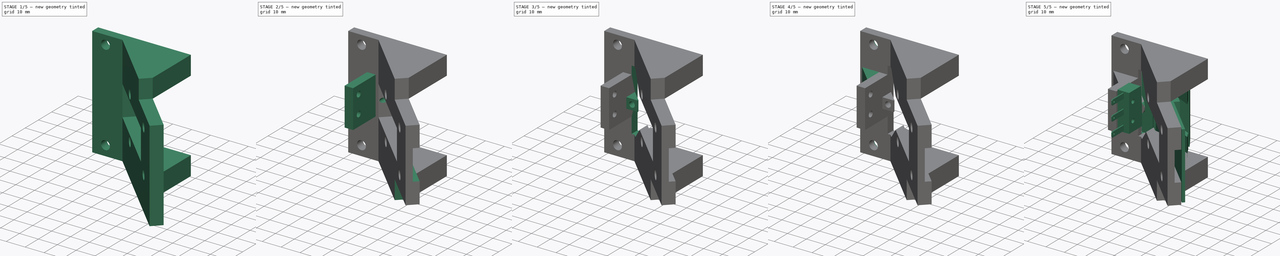
[diagram: build sequence overview — one tinted view per stage of 5, left to right]
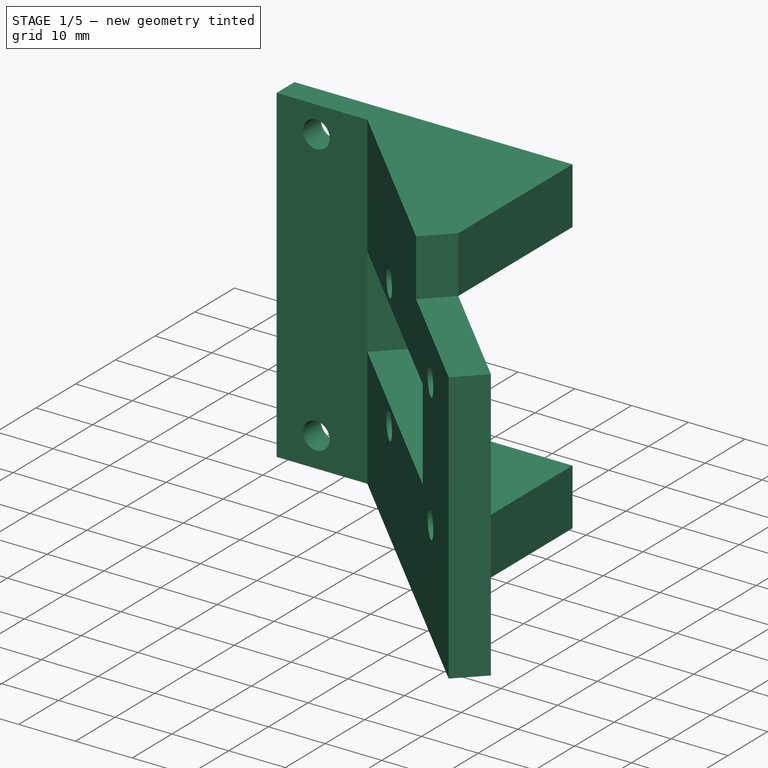
[diagram: stage 1 of 5 — iso view after this stage's code; geometry added in this stage tinted green]
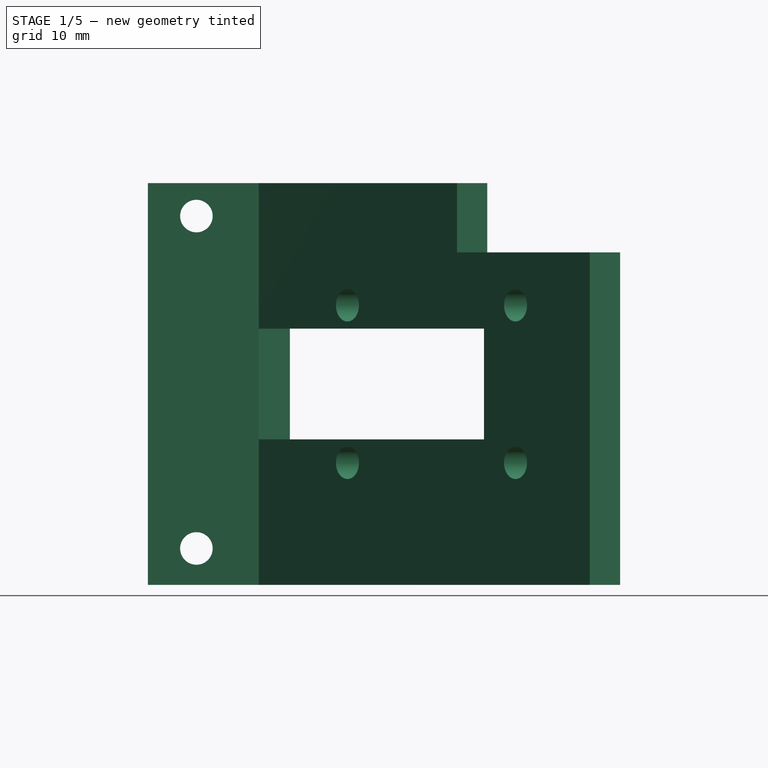
[diagram: stage 1 of 5 — front view after this stage's code; geometry added in this stage tinted green]
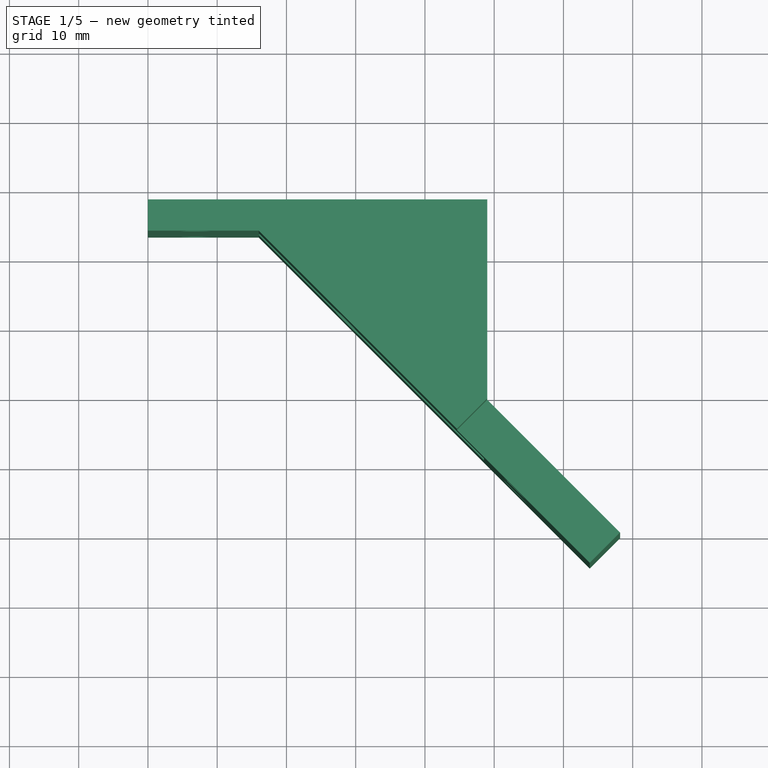
[diagram: stage 1 of 5 — top view after this stage's code; geometry added in this stage tinted green]
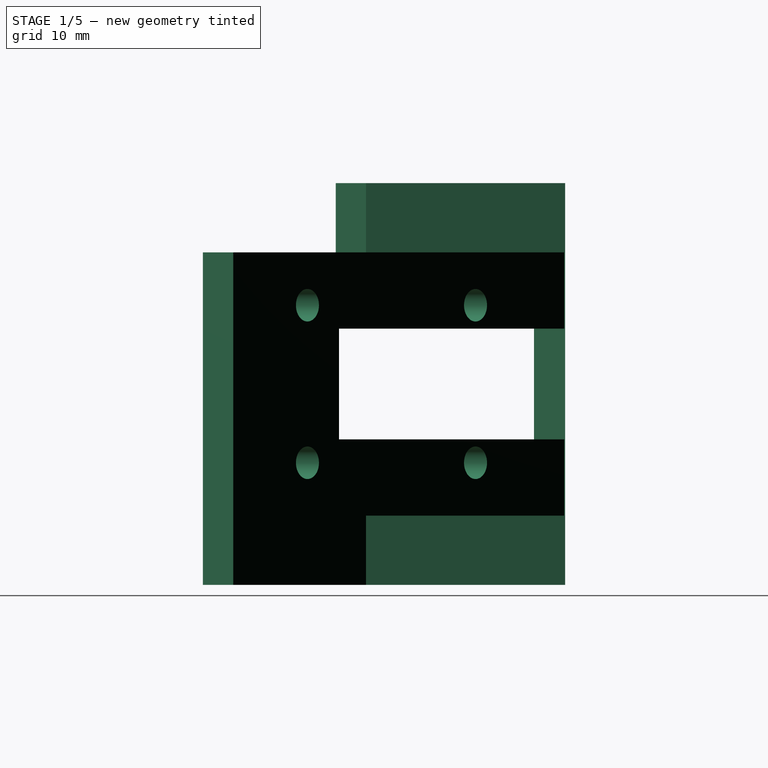
[diagram: stage 1 of 5 — right view after this stage's code; geometry added in this stage tinted green]
FCSTD DOCUMENT  (FreeCAD 0.18R4 (GitTag))
Label: USB_mount_v0.1
License: CreativeCommons Attribution-ShareAlike
LicenseURL: http://creativecommons.org/licenses/by-sa/4.0/
objects: Sketcher::SketchObject×18, PartDesign::Pocket×17, Part::FeaturePython×3, PartDesign::Pad×3, PartDesign::Chamfer×3, App::FeaturePython×2, PartDesign::Fillet×2, Part::Feature×1, PartDesign::Body×1
note: 68 computed .brp shape members not serialized (recipe doc carries the construction recipe); baked Part::Feature solids carry a one-line shape summary decoded from their .brp

FEATURE [Sketcher::SketchObject] Sketch
  MapMode = 5
  Support = -> [XY_Plane]
  sketch-geometry (7):
    g0: LineSegment StartX=-150 StartY=478 StartZ=0 EndX=-101 EndY=478 EndZ=0
    g1: LineSegment StartX=-81.8197 StartY=430.07 StartZ=0 EndX=-86.1947 EndY=425.695 EndZ=0
    g2: LineSegment StartX=-101 StartY=478 StartZ=0 EndX=-101 EndY=449.25 EndZ=0
    g3: LineSegment StartX=-101 StartY=449.25 StartZ=0 EndX=-81.8197 EndY=430.07 EndZ=0
    g4: LineSegment StartX=-86.1947 StartY=425.695 StartZ=0 EndX=-134 EndY=473.5 EndZ=0
    g5: LineSegment StartX=-134 StartY=473.5 StartZ=0 EndX=-150 EndY=473.5 EndZ=0
    g6: LineSegment StartX=-150 StartY=473.5 StartZ=0 EndX=-150 EndY=478 EndZ=0
  constraints (21):
    c: Horizontal(g0)
    c: Coincident(g0,g2)
    c: Vertical(g2)
    c: Coincident(g2,g3)
    c: Coincident(g3,g1)
    c: Coincident(g1,g4)
    c: Coincident(g4,g5)
    c: Horizontal(g5)
    c: Coincident(g5,g6)
    c: Coincident(g6,g0)
    c: Vertical(g6)
    c: DistanceY(g6,g6) = 4.5
    c: DistanceX(g0) = -150
    c: DistanceY(g0) = 478
    c: Angle(g4) = 2.35619
    c: DistanceX(g5,g5) = 16
    c: DistanceX(g0,g0) = 49
    c: Perpendicular(g3,g1)
    c: Parallel(g3,g4)
    c: DistanceY(g2,g2) = 28.75
    c: Distance(g3) = 27.125
FEATURE [PartDesign::Pad] Pad
  Length = 58
  Length2 = 100
  Profile = -> Sketch
  Type = 0
FEATURE [Sketcher::SketchObject] Sketch001
  MapMode = 5
  Placement = pos=(0,478,0) rot=(0,0.707107,0.707107;3.14159rad)
  Support = -> [Pad]
  sketch-geometry (8):
    g0: LineSegment [constr] StartX=107 StartY=53.25 StartZ=0 EndX=143 EndY=53.25 EndZ=0
    g1: LineSegment [constr] StartX=143 StartY=53.25 StartZ=0 EndX=143 EndY=5.25 EndZ=0
    g2: LineSegment [constr] StartX=143 StartY=5.25 StartZ=0 EndX=107 EndY=5.25 EndZ=0
    g3: LineSegment [constr] StartX=107 StartY=5.25 StartZ=0 EndX=107 EndY=53.25 EndZ=0
    g4: Circle CenterX=143 CenterY=53.25 CenterZ=0 NormalX=0 NormalY=0 NormalZ=1 AngleXU=0 Radius=2.35
    g5: Circle CenterX=143 CenterY=5.25 CenterZ=0 NormalX=0 NormalY=0 NormalZ=1 AngleXU=0 Radius=2.35
    g6: Circle CenterX=107 CenterY=5.25 CenterZ=0 NormalX=0 NormalY=0 NormalZ=1 AngleXU=0 Radius=2.35
    g7: Circle CenterX=107 CenterY=53.25 CenterZ=0 NormalX=0 NormalY=0 NormalZ=1 AngleXU=0 Radius=2.35
  constraints (20):
    c: Coincident(g0,g1)
    c: Coincident(g1,g2)
    c: Coincident(g2,g3)
    c: Coincident(g3,g0)
    c: Horizontal(g0)
    c: Horizontal(g2)
    c: Vertical(g1)
    c: Vertical(g3)
    c: Coincident(g4,g0)
    c: Coincident(g5,g1)
    c: Coincident(g6,g2)
    c: Coincident(g7,g0)
    c: DistanceX(g0) = 107
    c: DistanceY(g0) = 53.25
    c: DistanceX(g0,g0) = 36
    c: DistanceY(g1,g1) = 48
    c: Radius(g5) = 2.35
    c: Equal(g5,g6)
    c: Equal(g5,g7)
    c: Equal(g5,g4)
FEATURE [PartDesign::Pocket] Pocket
  BaseFeature = -> Pad
  Length = 8
  Length2 = 100
  Profile = -> Sketch001
  Type = 0
FEATURE [Sketcher::SketchObject] Sketch002
  ExternalGeometry = -> [Pocket]
  MapMode = 5
  Placement = pos=(174.125,174.125,0) rot=(0.281085,0.678598,0.678598;2.59356rad)
  Support = -> [Pocket]
  sketch-geometry (4):
    g0: LineSegment StartX=361.961 StartY=48 StartZ=0 EndX=429.567 EndY=48 EndZ=0
    g1: LineSegment StartX=429.567 StartY=48 StartZ=0 EndX=429.567 EndY=10 EndZ=0
    g2: LineSegment StartX=429.567 StartY=10 StartZ=0 EndX=361.961 EndY=10 EndZ=0
    g3: LineSegment StartX=361.961 StartY=10 StartZ=0 EndX=361.961 EndY=48 EndZ=0
  constraints (12):
    c: Coincident(g0,g1)
    c: Coincident(g1,g2)
    c: Coincident(g2,g3)
    c: Coincident(g3,g0)
    c: Horizontal(g0)
    c: Horizontal(g2)
    c: Vertical(g1)
    c: Vertical(g3)
    c: PointOnObject(g0,g-3)
    c: PointOnObject(g1,g-4)
    c: DistanceY(g-4,g1) = 10
    c: DistanceY(g0,g-4) = 10
FEATURE [PartDesign::Pocket] Pocket001
  BaseFeature = -> Pocket
  Length = 5
  Length2 = 100
  Profile = -> Sketch002
  Reversed = true
  Type = 1
FEATURE [Sketcher::SketchObject] Sketch003
  MapMode = 5
  Placement = pos=(174.125,174.125,0) rot=(0.281085,0.678598,0.678598;2.59356rad)
  Support = -> [Pocket001]
  sketch-geometry (8):
    g0: LineSegment [constr] StartX=377.125 StartY=40.375 StartZ=0 EndX=411.45 EndY=40.375 EndZ=0
    g1: LineSegment [constr] StartX=411.45 StartY=40.375 StartZ=0 EndX=411.45 EndY=17.625 EndZ=0
    g2: LineSegment [constr] StartX=411.45 StartY=17.625 StartZ=0 EndX=377.125 EndY=17.625 EndZ=0
    g3: LineSegment [constr] StartX=377.125 StartY=17.625 StartZ=0 EndX=377.125 EndY=40.375 EndZ=0
    g4: Circle CenterX=377.125 CenterY=40.375 CenterZ=0 NormalX=0 NormalY=0 NormalZ=1 AngleXU=0 Radius=2.35
    g5: Circle CenterX=411.45 CenterY=40.375 CenterZ=0 NormalX=0 NormalY=0 NormalZ=1 AngleXU=0 Radius=2.35
    g6: Circle CenterX=411.45 CenterY=17.625 CenterZ=0 NormalX=0 NormalY=0 NormalZ=1 AngleXU=0 Radius=2.35
    g7: Circle CenterX=377.125 CenterY=17.625 CenterZ=0 NormalX=0 NormalY=0 NormalZ=1 AngleXU=0 Radius=2.35
  constraints (20):
    c: Coincident(g0,g1)
    c: Coincident(g1,g2)
    c: Coincident(g2,g3)
    c: Coincident(g3,g0)
    c: Horizontal(g0)
    c: Horizontal(g2)
    c: Vertical(g1)
    c: Vertical(g3)
    c: Coincident(g4,g0)
    c: Coincident(g5,g0)
    c: Coincident(g6,g1)
    c: Coincident(g7,g2)
    c: Radius(g7) = 2.35
    c: Equal(g7,g4)
    c: Equal(g7,g5)
    c: Equal(g7,g6)
    c: DistanceX(g1) = 411.45
    c: DistanceY(g1) = 17.625
    c: DistanceX(g2,g2) = 34.325
    c: DistanceY(g1,g1) = 22.75
FEATURE [PartDesign::Pocket] Pocket002
  BaseFeature = -> Pocket001
  Length = 7
  Length2 = 100
  Profile = -> Sketch003
  Type = 0
FEATURE [Sketcher::SketchObject] Sketch004
  ExternalGeometry = -> [Pocket002]
  MapMode = 5
  Placement = pos=(169.75,169.75,0) rot=(0.862856,-0.357407,-0.357407;1.71777rad)
  Support = -> [Pocket002]
  sketch-geometry (4):
    g0: LineSegment StartX=-429.567 StartY=37 StartZ=0 EndX=-383.567 EndY=37 EndZ=0
    g1: LineSegment StartX=-383.567 StartY=37 StartZ=0 EndX=-383.567 EndY=21 EndZ=0
    g2: LineSegment StartX=-383.567 StartY=21 StartZ=0 EndX=-429.567 EndY=21 EndZ=0
    g3: LineSegment StartX=-429.567 StartY=21 StartZ=0 EndX=-429.567 EndY=37 EndZ=0
  constraints (12):
    c: Coincident(g0,g1)
    c: Coincident(g1,g2)
    c: Coincident(g2,g3)
    c: Coincident(g3,g0)
    c: Horizontal(g0)
    c: Horizontal(g2)
    c: Vertical(g1)
    c: Vertical(g3)
    c: PointOnObject(g0,g-3)
    c: DistanceY(g0,g-4) = 21
    c: DistanceY(g-4,g1) = 21
    c: DistanceX(g2,g2) = 46
FEATURE [PartDesign::Pocket] Pocket003
  BaseFeature = -> Pocket002
  Length = 8
  Length2 = 100
  Profile = -> Sketch004
  Type = 0
FEATURE [PartDesign::Pocket] Pocket004
  BaseFeature = -> Pocket003
  Length = 5
  Length2 = 100
  Profile = -> Pocket003 [Face20]
  Type = 1
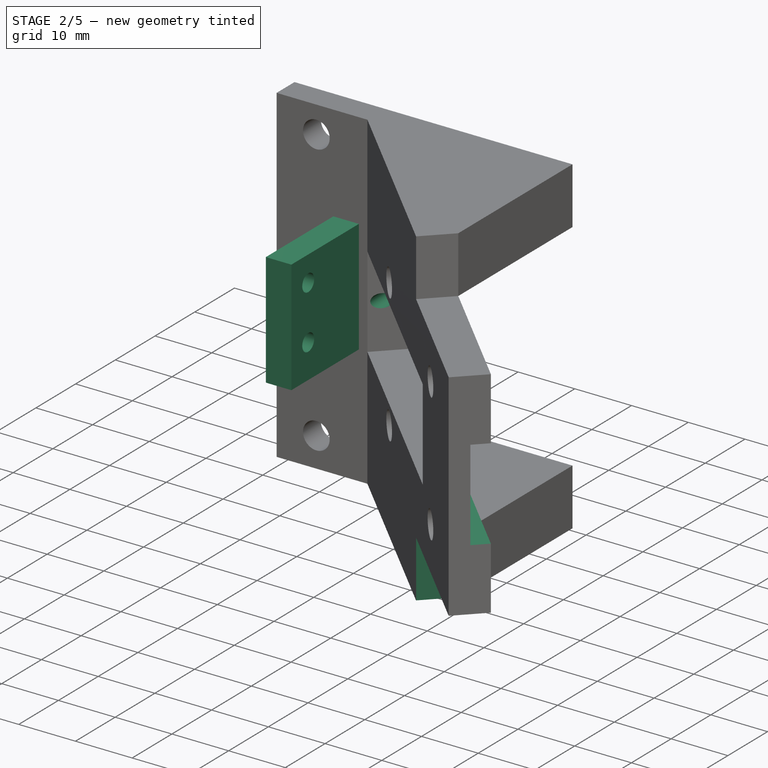
[diagram: stage 2 of 5 — iso view after this stage's code; geometry added in this stage tinted green]
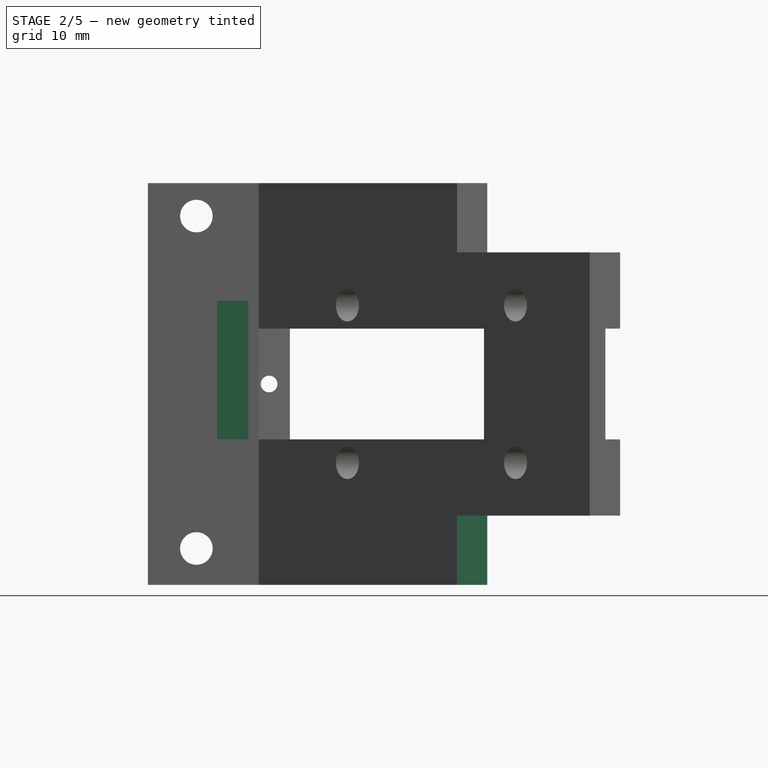
[diagram: stage 2 of 5 — front view after this stage's code; geometry added in this stage tinted green]
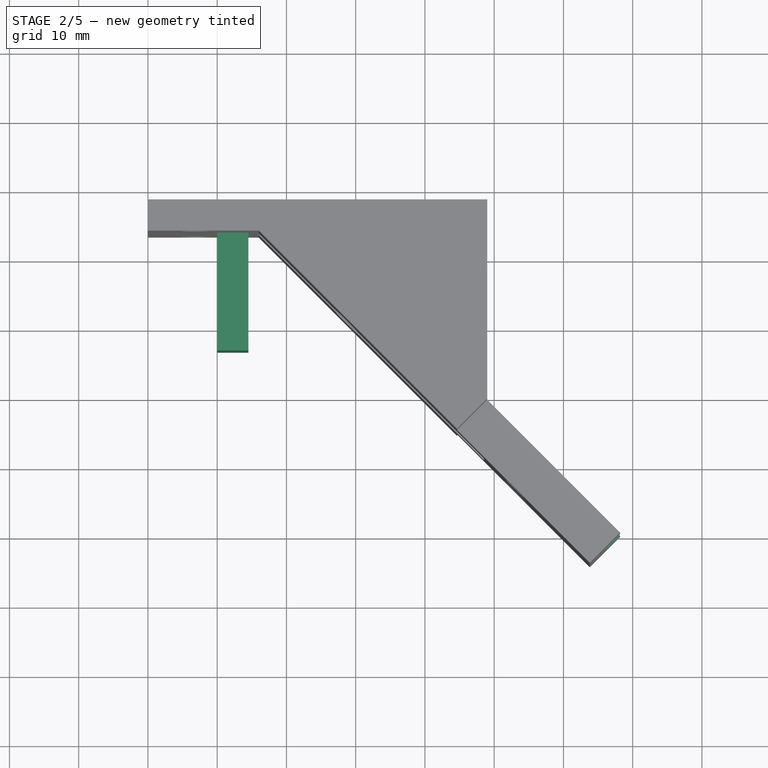
[diagram: stage 2 of 5 — top view after this stage's code; geometry added in this stage tinted green]
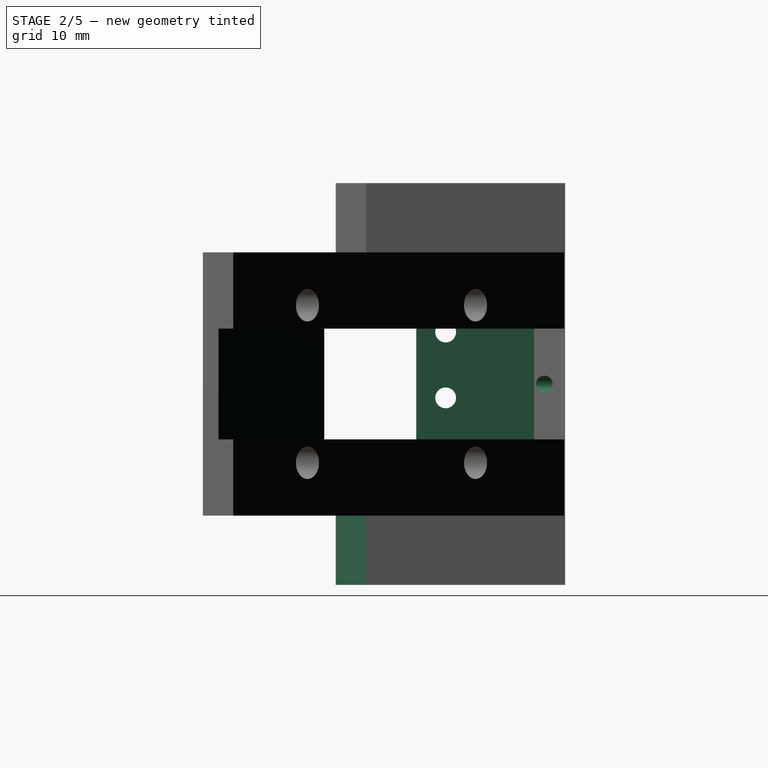
[diagram: stage 2 of 5 — right view after this stage's code; geometry added in this stage tinted green]
FEATURE [PartDesign::Pocket] Pocket005
  BaseFeature = -> Pocket004
  Length = 5
  Length2 = 100
  Profile = -> Pocket004 [Face16]
  Type = 1
FEATURE [Sketcher::SketchObject] Sketch005
  ExternalGeometry = -> [Pocket005]
  MapMode = 5
  Placement = pos=(174.125,174.125,0) rot=(0.281085,0.678598,0.678598;2.59356rad)
  Support = -> [Pocket005]
  sketch-geometry (4):
    g0: LineSegment StartX=383.567 StartY=37 StartZ=0 EndX=361.961 EndY=37 EndZ=0
    g1: LineSegment StartX=361.961 StartY=37 StartZ=0 EndX=361.961 EndY=21 EndZ=0
    g2: LineSegment StartX=361.961 StartY=21 StartZ=0 EndX=383.567 EndY=21 EndZ=0
    g3: LineSegment StartX=383.567 StartY=21 StartZ=0 EndX=383.567 EndY=37 EndZ=0
  constraints (11):
    c: Coincident(g0,g1)
    c: Coincident(g1,g2)
    c: Coincident(g2,g3)
    c: Coincident(g3,g0)
    c: Horizontal(g0)
    c: Horizontal(g2)
    c: Vertical(g1)
    c: Vertical(g3)
    c: Coincident(g2,g-3)
    c: Coincident(g0,g-3)
    c: PointOnObject(g0,g-4)
FEATURE [PartDesign::Pocket] Pocket006
  BaseFeature = -> Pocket005
  Length = 3
  Length2 = 100
  Profile = -> Sketch005
  Type = 0
FEATURE [Sketcher::SketchObject] Sketch006
  ExternalGeometry = -> [Pocket006]
  MapMode = 5
  Placement = pos=(0,478,0) rot=(0,0.707107,0.707107;3.14159rad)
  Support = -> [Pocket006]
  sketch-geometry (1):
    g0: Circle CenterX=132.5 CenterY=29 CenterZ=0 NormalX=0 NormalY=0 NormalZ=1 AngleXU=0 Radius=1.2
  constraints (3):
    c: Radius(g0) = 1.2
    c: DistanceX(g0,g-3) = 17.5
    c: DistanceY(g0) = 29
FEATURE [PartDesign::Pocket] Pocket007
  BaseFeature = -> Pocket006
  Length = 5
  Length2 = 100
  Profile = -> Sketch006
  Type = 0
FEATURE [PartDesign::Pad] Pad001
  BaseFeature = -> Pocket007
  Length = 17
  Length2 = 100
  Profile = -> Sketch007
  Type = 0
FEATURE [Sketcher::SketchObject] Sketch008
  MapMode = 5
  Placement = pos=(-140,0,0) rot=(0.57735,-0.57735,-0.57735;2.0944rad)
  Support = -> [Pad001]
  sketch-geometry (2):
    g0: Circle CenterX=-460.75 CenterY=36.5 CenterZ=0 NormalX=0 NormalY=0 NormalZ=1 AngleXU=0 Radius=1.5
    g1: Circle CenterX=-460.75 CenterY=27 CenterZ=0 NormalX=0 NormalY=0 NormalZ=1 AngleXU=0 Radius=1.5
  constraints (6):
    c: DistanceX(g1,g0) = 0
    c: DistanceY(g1,g0) = 9.5
    c: DistanceX(g1) = -460.75
    c: DistanceY(g1) = 27
    c: Radius(g1) = 1.5
    c: Equal(g1,g0)
FEATURE [PartDesign::Pocket] Pocket008
  BaseFeature = -> Pad001
  Length = 5
  Length2 = 100
  Profile = -> Sketch008
  Type = 0
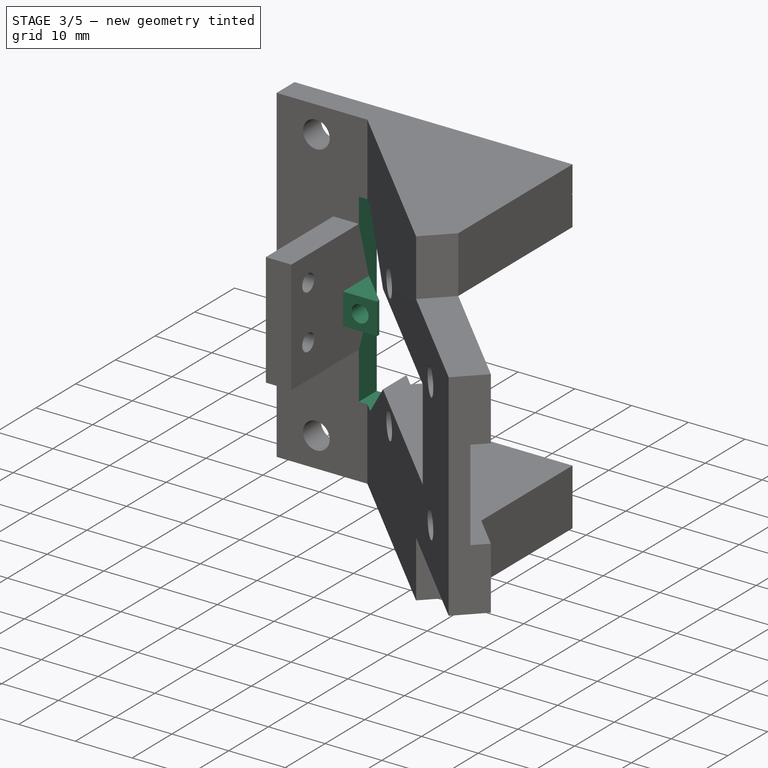
[diagram: stage 3 of 5 — iso view after this stage's code; geometry added in this stage tinted green]
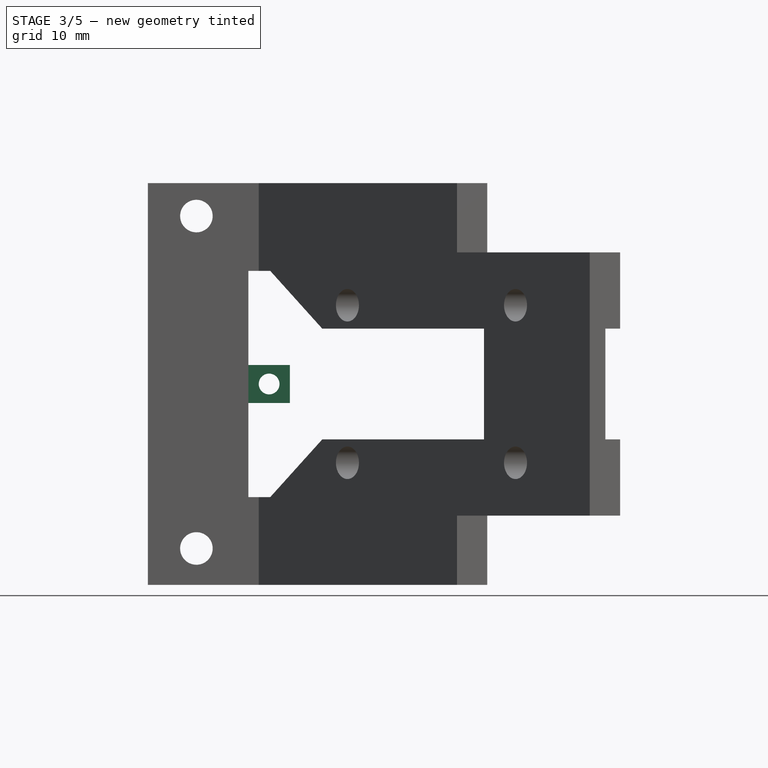
[diagram: stage 3 of 5 — front view after this stage's code; geometry added in this stage tinted green]
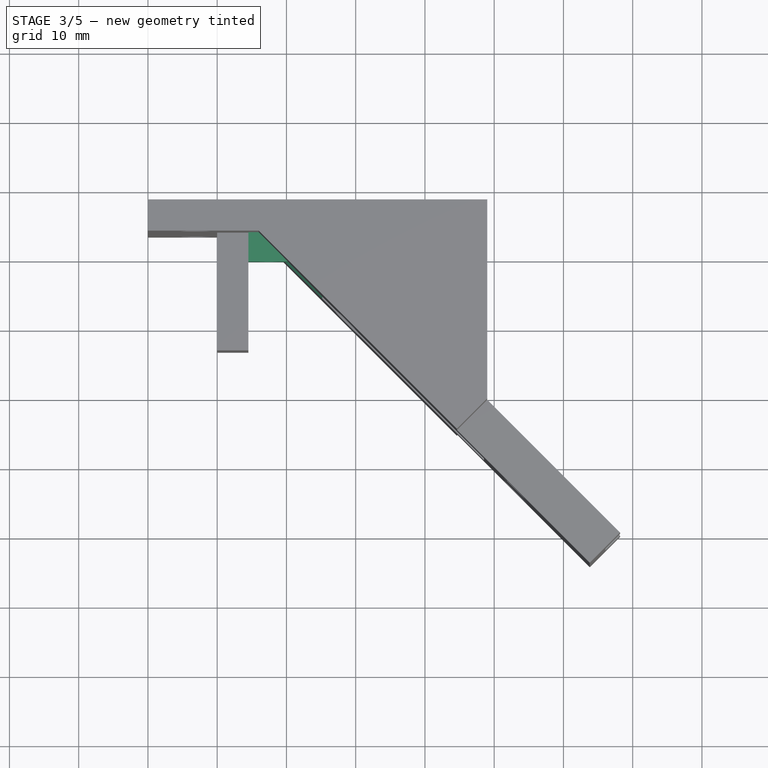
[diagram: stage 3 of 5 — top view after this stage's code; geometry added in this stage tinted green]
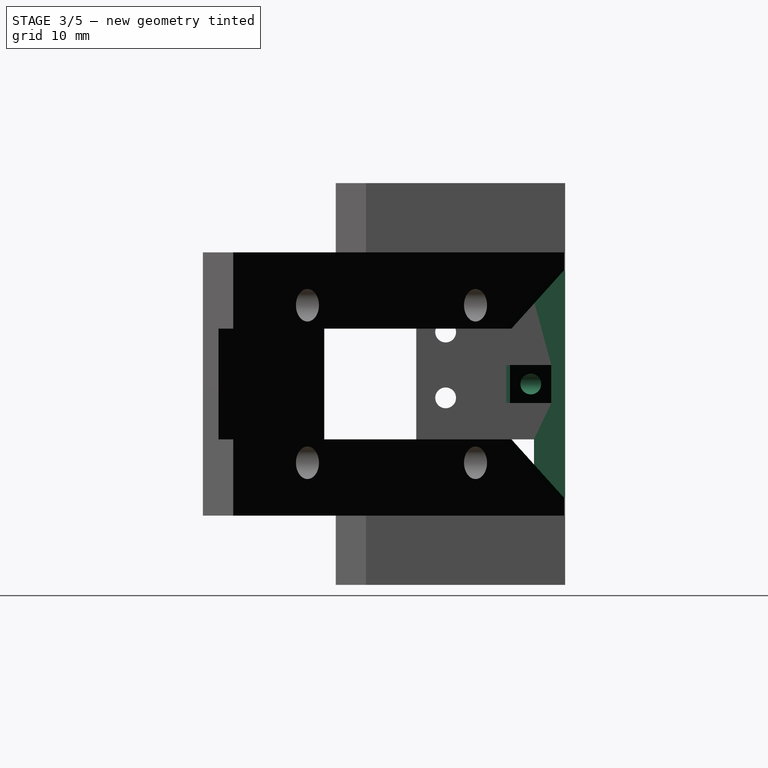
[diagram: stage 3 of 5 — right view after this stage's code; geometry added in this stage tinted green]
FEATURE [Sketcher::SketchObject] Sketch011
  MapMode = 5
  Placement = pos=(174.125,174.125,0) rot=(0.281085,0.678598,0.678598;2.59356rad)
  sketch-geometry (4):
    g0: LineSegment StartX=431.567 StartY=48 StartZ=0 EndX=417.567 EndY=37 EndZ=0
    g1: LineSegment StartX=431.567 StartY=10 StartZ=0 EndX=431.567 EndY=48 EndZ=0
    g2: LineSegment StartX=417.567 StartY=21 StartZ=0 EndX=431.567 EndY=10 EndZ=0
    g3: LineSegment StartX=417.567 StartY=37 StartZ=0 EndX=417.567 EndY=21 EndZ=0
  constraints (12):
    c: Vertical(g1)
    c: DistanceX(g0,g1) = 14
    c: Coincident(g0,g1)
    c: Coincident(g1,g2)
    c: Coincident(g2,g3)
    c: Coincident(g0,g3)
    c: Vertical(g3)
    c: DistanceY(g0,g0) = 11
    c: DistanceY(g2,g2) = 11
    c: DistanceX(g0) = 431.567
    c: DistanceY(g0) = 48
    c: DistanceY(g1,g1) = 38
FEATURE [Sketcher::SketchObject] Sketch013
  MapMode = 5
  Placement = pos=(-135.5,0,0) rot=(0.57735,0.57735,0.57735;2.0944rad)
  sketch-geometry (4):
    g0: LineSegment StartX=469.5 StartY=31.75 StartZ=0 EndX=476 EndY=31.75 EndZ=0
    g1: LineSegment StartX=476 StartY=31.75 StartZ=0 EndX=476 EndY=26.25 EndZ=0
    g2: LineSegment StartX=476 StartY=26.25 StartZ=0 EndX=469.5 EndY=26.25 EndZ=0
    g3: LineSegment StartX=469.5 StartY=26.25 StartZ=0 EndX=469.5 EndY=31.75 EndZ=0
  constraints (12):
    c: Coincident(g0,g1)
    c: Coincident(g1,g2)
    c: Coincident(g2,g3)
    c: Coincident(g3,g0)
    c: Horizontal(g0)
    c: Horizontal(g2)
    c: Vertical(g1)
    c: Vertical(g3)
    c: DistanceX(g0) = 476
    c: DistanceY(g0) = 31.75
    c: DistanceY(g1,g1) = 5.5
    c: DistanceX(g0,g0) = 6.5
FEATURE [Sketcher::SketchObject] Sketch014
  MapMode = 5
  Placement = pos=(0,476,0) rot=(0,0.707107,0.707107;3.14159rad)
  sketch-geometry (1):
    g0: Circle CenterX=132.5 CenterY=29 CenterZ=0 NormalX=0 NormalY=0 NormalZ=1 AngleXU=0 Radius=1.5
  constraints (3):
    c: DistanceX(g0) = 132.5
    c: DistanceY(g0) = 29
    c: Radius(g0) = 1.5
FEATURE [Sketcher::SketchObject] Sketch015
  MapMode = 5
  Placement = pos=(0,0,31.75) rot=(0,0,1;0rad)
  sketch-geometry (3):
    g0: LineSegment StartX=-135.453 StartY=476 StartZ=0 EndX=-129.453 EndY=470 EndZ=0
    g1: LineSegment StartX=-129.453 StartY=470 StartZ=0 EndX=-129.453 EndY=476 EndZ=0
    g2: LineSegment StartX=-129.453 StartY=476 StartZ=0 EndX=-135.453 EndY=476 EndZ=0
  constraints (9):
    c: Coincident(g0,g1)
    c: Vertical(g1)
    c: Coincident(g1,g2)
    c: Coincident(g2,g0)
    c: Angle(g0) = -0.785398
    c: DistanceX(g0) = -135.453
    c: DistanceY(g0) = 476
    c: DistanceX(g2,g2) = 6
    c: Horizontal(g2)
FEATURE [PartDesign::Pocket] Pocket009
  BaseFeature = -> Pocket008
  Length = 4
  Length2 = 100
  Midplane = true
  Profile = -> Sketch011
  Refine = true
  Type = 0
FEATURE [Sketcher::SketchObject] Sketch012
  ExternalGeometry = -> [Pocket009]
  MapMode = 5
  Placement = pos=(0,478,0) rot=(0,0.707107,0.707107;3.14159rad)
  sketch-geometry (6):
    g0: LineSegment StartX=124.83 StartY=37 StartZ=0 EndX=132.328 EndY=45.3278 EndZ=0
    g1: LineSegment StartX=132.328 StartY=45.3278 StartZ=0 EndX=135.5 EndY=45.3278 EndZ=0
    g2: LineSegment StartX=135.5 StartY=45.3278 StartZ=0 EndX=135.5 EndY=12.6722 EndZ=0
    g3: LineSegment StartX=135.5 StartY=12.6722 StartZ=0 EndX=132.328 EndY=12.6722 EndZ=0
    g4: LineSegment StartX=132.328 StartY=12.6722 StartZ=0 EndX=124.83 EndY=21 EndZ=0
    g5: LineSegment StartX=124.83 StartY=21 StartZ=0 EndX=124.83 EndY=37 EndZ=0
  constraints (18):
    c: Coincident(g0,g1)
    c: Horizontal(g1)
    c: Coincident(g1,g2)
    c: Vertical(g2)
    c: Coincident(g2,g3)
    c: Horizontal(g3)
    c: Coincident(g3,g4)
    c: Coincident(g4,g5)
    c: Coincident(g5,g0)
    c: PointOnObject(g0,g-5)
    c: PointOnObject(g0,g-3)
    c: PointOnObject(g4,g-4)
    c: PointOnObject(g3,g-6)
    c: Angle(g4) = 2.30383
    c: Angle(g0) = 0.837758
    c: PointOnObject(g-7,g2)
    c: Vertical(g5)
    c: DistanceX(g0) = 124.83
FEATURE [PartDesign::Pocket] Pocket010
  BaseFeature = -> Pocket009
  Length = 30
  Length2 = 100
  Profile = -> Sketch012
  Refine = true
  Type = 0
FEATURE [PartDesign::Pad] Pad002
  BaseFeature = -> Pocket010
  Length = 6
  Length2 = 100
  Profile = -> Sketch013
  Refine = true
  Type = 0
FEATURE [PartDesign::Pocket] Pocket011
  BaseFeature = -> Pad002
  Length = 5
  Length2 = 100
  Profile = -> Sketch014
  Refine = true
  Type = 1
FEATURE [PartDesign::Pocket] Pocket012
  BaseFeature = -> Pocket011
  Length = 6
  Length2 = 100
  Profile = -> Sketch015
  Refine = true
  Type = 0
FEATURE [PartDesign::Pocket] Pocket013
  BaseFeature = -> Pocket012
  Length = 0.25
  Length2 = 100
  Profile = -> Sketch009
  Refine = true
  Type = 0
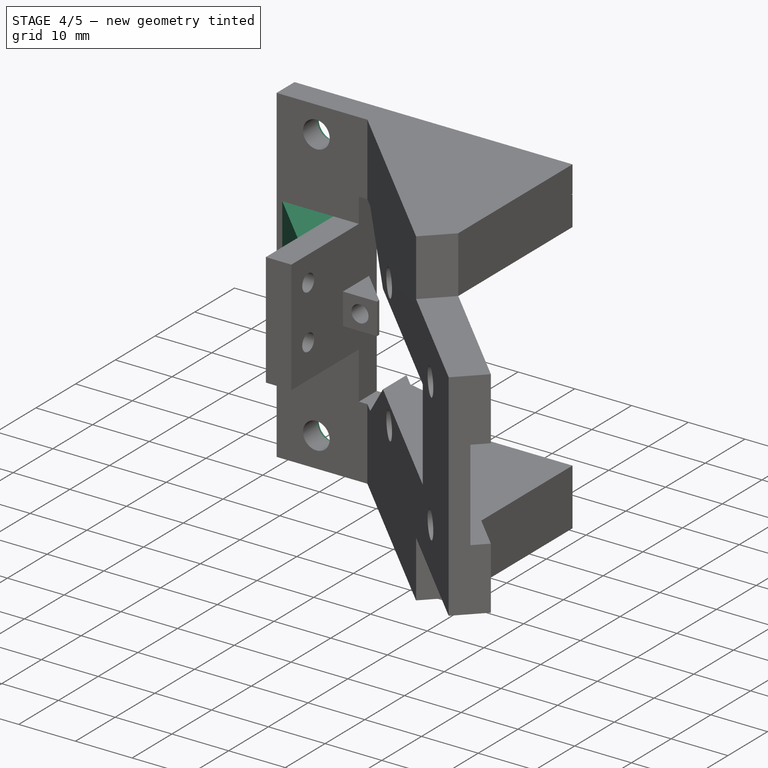
[diagram: stage 4 of 5 — iso view after this stage's code; geometry added in this stage tinted green]
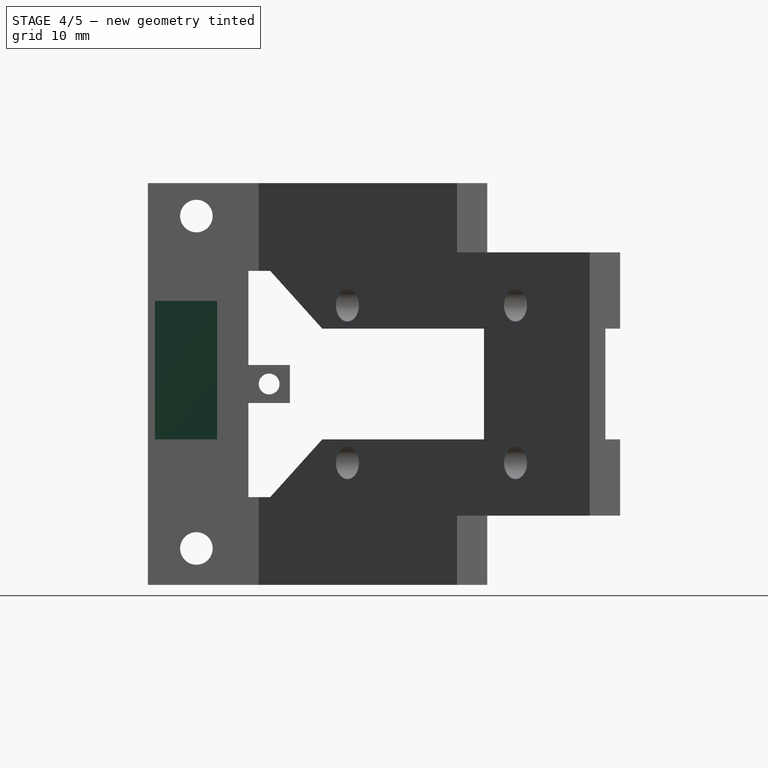
[diagram: stage 4 of 5 — front view after this stage's code; geometry added in this stage tinted green]
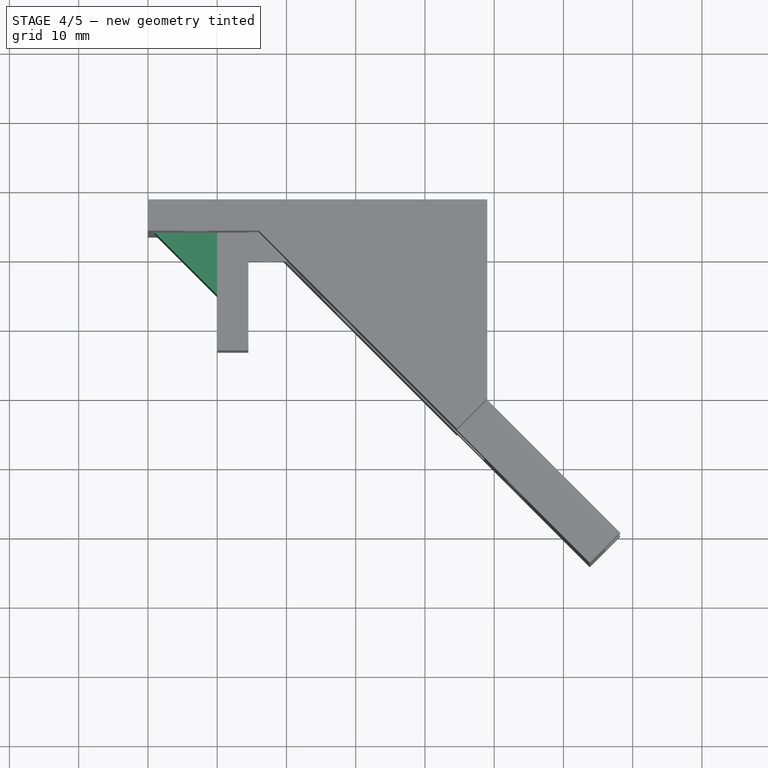
[diagram: stage 4 of 5 — top view after this stage's code; geometry added in this stage tinted green]
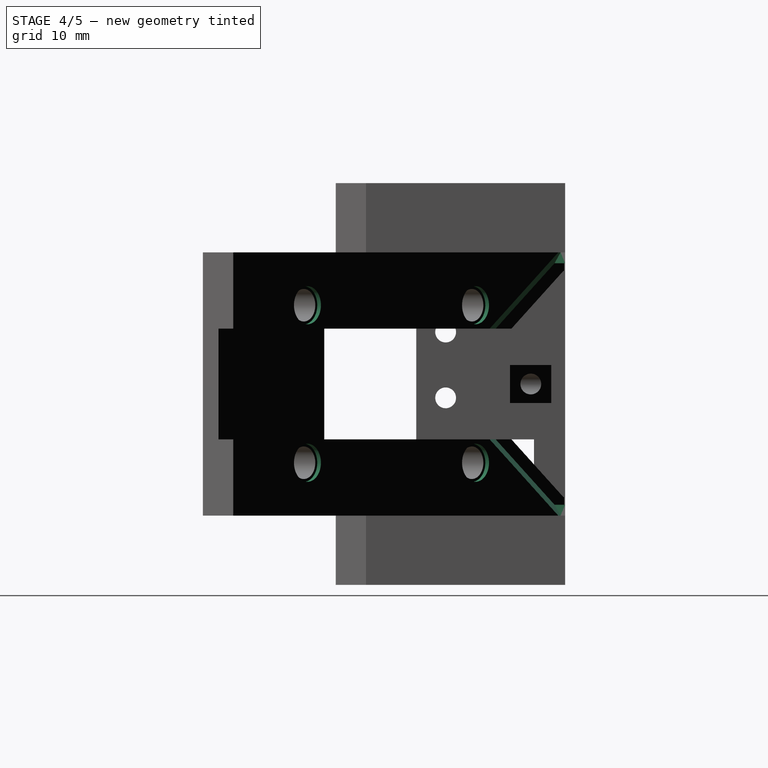
[diagram: stage 4 of 5 — right view after this stage's code; geometry added in this stage tinted green]
FEATURE [Sketcher::SketchObject] Sketch016
  ExternalGeometry = -> [Pocket013]
  MapMode = 5
  Placement = pos=(174.125,174.125,-4.71e-13) rot=(0.281085,0.678598,0.678598;2.59356rad)
  Support = -> [Pocket013]
  sketch-geometry (4):
    g0: Circle CenterX=377.125 CenterY=40.375 CenterZ=0 NormalX=0 NormalY=0 NormalZ=1 AngleXU=0 Radius=2.75
    g1: Circle CenterX=411.45 CenterY=40.375 CenterZ=0 NormalX=0 NormalY=0 NormalZ=1 AngleXU=0 Radius=2.75
    g2: Circle CenterX=411.45 CenterY=17.625 CenterZ=0 NormalX=0 NormalY=0 NormalZ=1 AngleXU=0 Radius=2.75
    g3: Circle CenterX=377.125 CenterY=17.625 CenterZ=0 NormalX=0 NormalY=0 NormalZ=1 AngleXU=0 Radius=2.75
  constraints (8):
    c: Coincident(g0,g-4)
    c: Coincident(g1,g-3)
    c: Coincident(g2,g-6)
    c: Coincident(g3,g-5)
    c: Equal(g3,g0)
    c: Equal(g0,g1)
    c: Equal(g1,g2)
    c: Radius(g2) = 2.75
FEATURE [PartDesign::Pocket] Pocket014
  BaseFeature = -> Pocket013
  Length = 0.75
  Length2 = 100
  Profile = -> Sketch016
  Refine = true
  Type = 0
FEATURE [Sketcher::SketchObject] Sketch017
  ExternalGeometry = -> [Pocket014]
  MapMode = 5
  Placement = pos=(-140,0,0) rot=(0.57735,-0.57735,-0.57735;2.0944rad)
  Support = -> [Pocket014]
  sketch-geometry (2):
    g0: Circle CenterX=-460.75 CenterY=36.5 CenterZ=0 NormalX=0 NormalY=0 NormalZ=1 AngleXU=0 Radius=1.75
    g1: Circle CenterX=-460.75 CenterY=27 CenterZ=0 NormalX=0 NormalY=0 NormalZ=1 AngleXU=0 Radius=1.75
  constraints (4):
    c: Coincident(g1,g-3)
    c: Coincident(g0,g-4)
    c: Radius(g1) = 1.75
    c: Equal(g1,g0)
FEATURE [PartDesign::Pocket] Pocket015
  BaseFeature = -> Pocket014
  Length = 0.5
  Length2 = 100
  Profile = -> Sketch017
  Refine = true
  Type = 0
FEATURE [Sketcher::SketchObject] Sketch018
  ExternalGeometry = -> [Pocket015]
  MapMode = 5
  Placement = pos=(0,478,0) rot=(0,0.707107,0.707107;3.14159rad)
  Support = -> [Pocket015]
  sketch-geometry (4):
    g0: Circle CenterX=107 CenterY=53.25 CenterZ=0 NormalX=0 NormalY=0 NormalZ=1 AngleXU=0 Radius=2.75
    g1: Circle CenterX=143 CenterY=53.25 CenterZ=0 NormalX=0 NormalY=0 NormalZ=1 AngleXU=0 Radius=2.75
    g2: Circle CenterX=143 CenterY=5.25 CenterZ=0 NormalX=0 NormalY=0 NormalZ=1 AngleXU=0 Radius=2.75
    g3: Circle CenterX=107 CenterY=5.25 CenterZ=0 NormalX=0 NormalY=0 NormalZ=1 AngleXU=0 Radius=2.75
  constraints (8):
    c: Coincident(g0,g-3)
    c: Coincident(g1,g-4)
    c: Coincident(g2,g-5)
    c: Coincident(g3,g-6)
    c: Radius(g3) = 2.75
    c: Equal(g3,g2)
    c: Equal(g3,g1)
    c: Equal(g3,g0)
FEATURE [PartDesign::Pocket] Pocket016
  BaseFeature = -> Pocket015
  Length = 0.75
  Length2 = 100
  Profile = -> Sketch018
  Refine = true
  Type = 0
FEATURE [PartDesign::Chamfer] Chamfer
  Base = -> Pocket016 [Edge135]
  BaseFeature = -> Pocket016
  Size = 9
FEATURE [PartDesign::Chamfer] Chamfer001
  Base = -> Chamfer [Edge211,Edge204]
  BaseFeature = -> Chamfer
  Size = 1.99
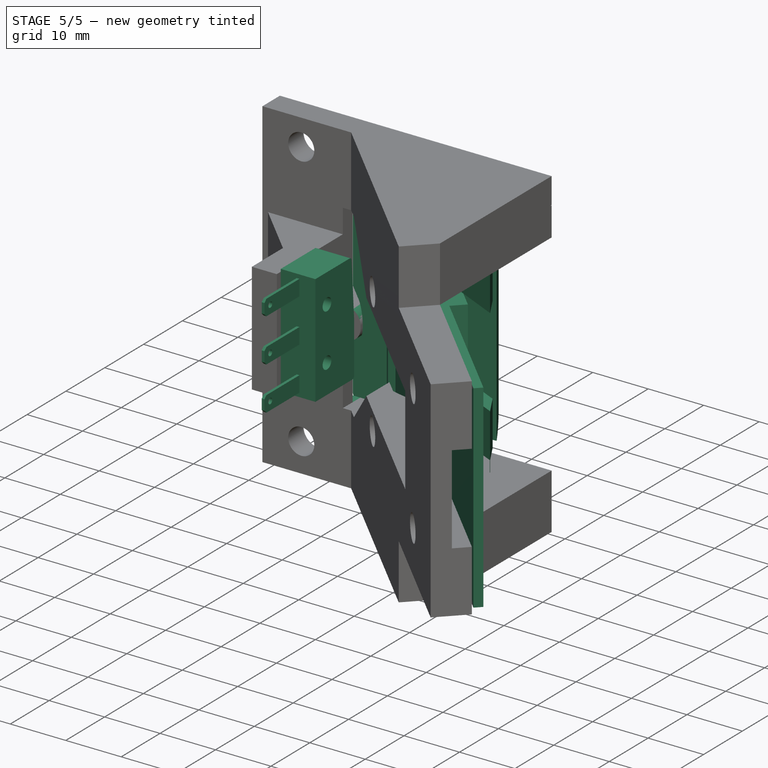
[diagram: stage 5 of 5 — iso view after this stage's code; geometry added in this stage tinted green]
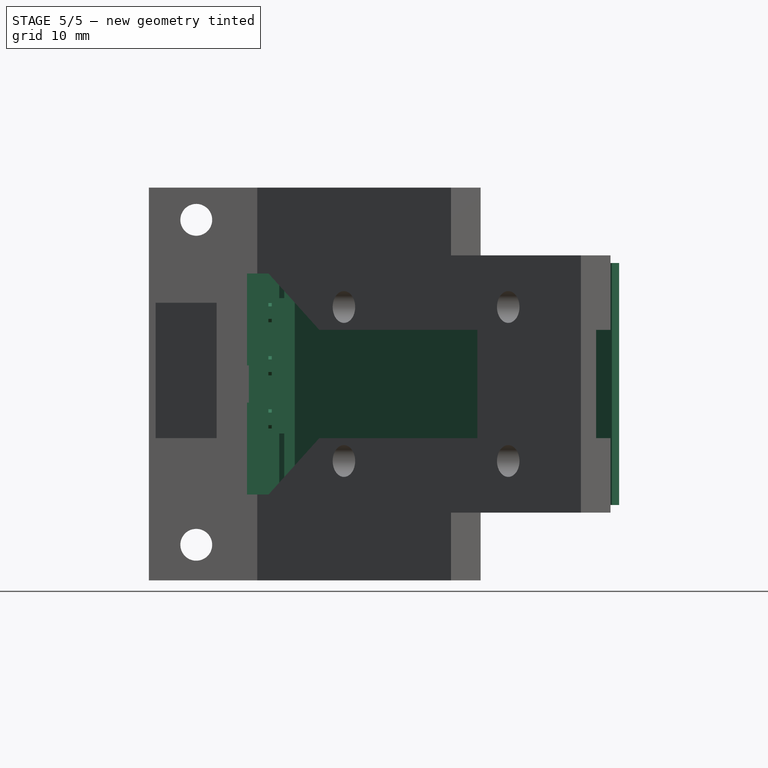
[diagram: stage 5 of 5 — front view after this stage's code; geometry added in this stage tinted green]
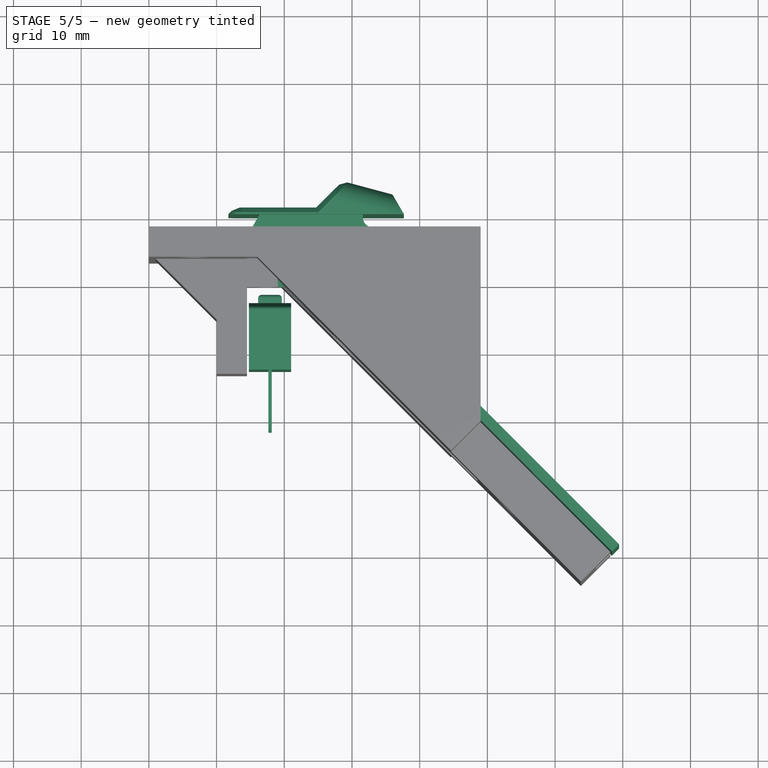
[diagram: stage 5 of 5 — top view after this stage's code; geometry added in this stage tinted green]
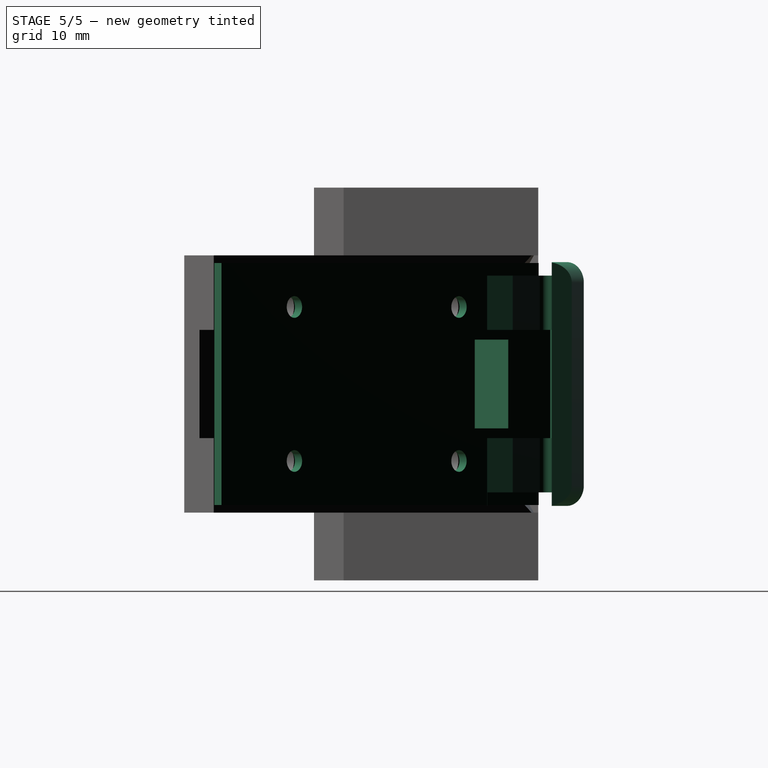
[diagram: stage 5 of 5 — right view after this stage's code; geometry added in this stage tinted green]
FEATURE [Part::Feature] Part__Feature  label="Fillet002"
  Placement = pos=(5.26797,16.3651,73.8929) rot=(0,0,1;0rad)
  shape: bbox 170 x 480 x 100.6 mm, 336 faces (baked)
FEATURE [Part::FeaturePython] USB_board_01  # a2plus imported part (geometry in sourceFile) (typed FeaturePython)
  Placement = pos=(-81.6001,430.152,46.875) rot=(-0.357407,0.862856,0.357407;1.71777rad)
  fixedPosition = true
  sourceFile = <userpath>/Projects/taz-quiver/Production_parts/Printed_parts/TAZ7_assembly/Quiver_assembly_parts/USB_board.fcstd
  timeLastImport = 1.52536e+09
  updateColors = true
FEATURE [Sketcher::SketchObject] Sketch007
  MapMode = 5
  Placement = pos=(0,473.5,0) rot=(1,0,0;1.5708rad)
  Support = -> [Pocket007]
  sketch-geometry (4):
    g0: LineSegment StartX=-135.5 StartY=41 StartZ=0 EndX=-140 EndY=41 EndZ=0
    g1: LineSegment StartX=-140 StartY=41 StartZ=0 EndX=-140 EndY=21 EndZ=0
    g2: LineSegment StartX=-140 StartY=21 StartZ=0 EndX=-135.5 EndY=21 EndZ=0
    g3: LineSegment StartX=-135.5 StartY=21 StartZ=0 EndX=-135.5 EndY=41 EndZ=0
  constraints (12):
    c: Coincident(g0,g1)
    c: Coincident(g1,g2)
    c: Coincident(g2,g3)
    c: Coincident(g3,g0)
    c: Horizontal(g0)
    c: Horizontal(g2)
    c: Vertical(g1)
    c: Vertical(g3)
    c: DistanceX(g1) = -140
    c: DistanceY(g1) = 21
    c: DistanceY(g1,g1) = 20
    c: DistanceX(g0,g0) = 4.5
FEATURE [Part::FeaturePython] limit_switch_01  # a2plus imported part (geometry in sourceFile) (typed FeaturePython)
  Placement = pos=(-128.982,457.115,21.6929) rot=(0,-1,0;1.5708rad)
  fixedPosition = false
  sourceFile = <userpath>/Projects/taz-quiver/Production_parts/Printed_parts/TAZ7_assembly/PARTS/limit_switch.fcstd
  timeLastImport = 1.52536e+09
  updateColors = true
FEATURE [Sketcher::SketchObject] Sketch009
  MapMode = 5
  Placement = pos=(0,478,0) rot=(0,0.707107,0.707107;3.14159rad)
  sketch-geometry (20):
    g0: LineSegment [constr] StartX=107 StartY=53.25 StartZ=0 EndX=101 EndY=53.25 EndZ=0
    g1: LineSegment [constr] StartX=143 StartY=53.25 StartZ=0 EndX=150 EndY=53.25 EndZ=0
    g2: LineSegment [constr] StartX=143 StartY=5.25 StartZ=0 EndX=150 EndY=5.25 EndZ=0
    g3: LineSegment [constr] StartX=107 StartY=5.25 StartZ=0 EndX=101 EndY=5.25 EndZ=0
    g4: LineSegment StartX=101 StartY=53.3 StartZ=0 EndX=103.65 EndY=53.3 EndZ=0
    g5: LineSegment StartX=103.65 StartY=53.3 StartZ=0 EndX=103.65 EndY=53.2 EndZ=0
    g6: LineSegment StartX=103.65 StartY=53.2 StartZ=0 EndX=101 EndY=53.2 EndZ=0
    g7: LineSegment StartX=101 StartY=53.2 StartZ=0 EndX=101 EndY=53.3 EndZ=0
    g8: LineSegment StartX=146.35 StartY=53.3 StartZ=0 EndX=150 EndY=53.3 EndZ=0
    g9: LineSegment StartX=150 StartY=53.3 StartZ=0 EndX=150 EndY=53.2 EndZ=0
    g10: LineSegment StartX=150 StartY=53.2 StartZ=0 EndX=146.35 EndY=53.2 EndZ=0
    g11: LineSegment StartX=146.35 StartY=53.2 StartZ=0 EndX=146.35 EndY=53.3 EndZ=0
    g12: LineSegment StartX=146.35 StartY=5.3 StartZ=0 EndX=150 EndY=5.3 EndZ=0
    g13: LineSegment StartX=150 StartY=5.3 StartZ=0 EndX=150 EndY=5.2 EndZ=0
    g14: LineSegment StartX=150 StartY=5.2 StartZ=0 EndX=146.35 EndY=5.2 EndZ=0
    g15: LineSegment StartX=146.35 StartY=5.2 StartZ=0 EndX=146.35 EndY=5.3 EndZ=0
    g16: LineSegment StartX=101 StartY=5.3 StartZ=0 EndX=103.65 EndY=5.3 EndZ=0
    g17: LineSegment StartX=103.65 StartY=5.3 StartZ=0 EndX=103.65 EndY=5.2 EndZ=0
    g18: LineSegment StartX=103.65 StartY=5.2 StartZ=0 EndX=101 EndY=5.2 EndZ=0
    g19: LineSegment StartX=101 StartY=5.2 StartZ=0 EndX=101 EndY=5.3 EndZ=0
  constraints (40):
    c: Horizontal(g0)
    c: Horizontal(g1)
    c: Horizontal(g3)
    c: Coincident(g4,g5)
    c: Coincident(g5,g6)
    c: Coincident(g6,g7)
    c: Coincident(g7,g4)
    c: Horizontal(g4)
    c: Horizontal(g6)
    c: Vertical(g5)
    c: Symmetric(g4,g6,g0)
    c: Distance(g5) = 0.1
    c: Horizontal(g2)
    c: Coincident(g8,g9)
    c: Coincident(g9,g10)
    c: Coincident(g10,g11)
    c: Coincident(g11,g8)
    c: Horizontal(g8)
    c: Horizontal(g10)
    c: Vertical(g11)
    c: Symmetric(g9,g8,g1)
    c: Distance(g11) = 0.1
    c: Coincident(g12,g13)
    c: Coincident(g13,g14)
    c: Coincident(g14,g15)
    c: Coincident(g15,g12)
    c: Horizontal(g12)
    c: Horizontal(g14)
    c: Vertical(g13)
    c: Symmetric(g12,g14,g2)
    c: Distance(g13) = 0.1
    c: Coincident(g16,g17)
    c: Coincident(g17,g18)
    c: Coincident(g18,g19)
    c: Coincident(g19,g16)
    c: Horizontal(g16)
    c: Horizontal(g18)
    c: Vertical(g17)
    c: Symmetric(g16,g18,g3)
    c: Distance(g17) = 0.1
FEATURE [App::FeaturePython] planeConstraint01_mirror  label="planeConstraint01__Pocket009"  # a2plus constraint (typed FeaturePython)
  Object1 = Pocket009
  Object2 = USB_bezel_v1_02
  SubElement1 = Face21
  SubElement2 = Face43
  Type = plane
  directionConstraint = 1
  offset = -2
FEATURE [App::FeaturePython] planeConstraint01  label="planeConstraint01__USB_bezel_v1_02"  # a2plus constraint (typed FeaturePython)
  Object1 = Pocket009
  Object2 = USB_bezel_v1_02
  SubElement1 = Face21
  SubElement2 = Face43
  Type = plane
  directionConstraint = 1
  offset = -2
FEATURE [Part::FeaturePython] USB_bezel_v1_02  # a2plus imported part (geometry in sourceFile) (typed FeaturePython)
  Placement = pos=(-111.75,478.999,11) rot=(0,0,1;2.0944rad)
  fixedPosition = false
  sourceFile = <userpath>/Projects/taz-quiver/Production_parts/Printed_parts/USB/USB_bezel_v1.fcstd
  timeLastImport = 1.54153e+09
  updateColors = true
FEATURE [PartDesign::Chamfer] Chamfer002
  Base = -> Chamfer001 [Edge76]
  BaseFeature = -> Chamfer001
  Size = 1.99
FEATURE [PartDesign::Fillet] Fillet
  Base = -> Chamfer002 [Edge247]
  BaseFeature = -> Chamfer002
  Radius = 0.5
FEATURE [PartDesign::Fillet] Fillet001
  Base = -> Fillet [Edge29,Edge15]
  BaseFeature = -> Fillet
  Radius = 2.49
FEATURE [PartDesign::Body] Body
  Group = -> [Sketch,Pad,Sketch001,Pocket,Sketch002,Pocket001,Sketch003,Pocket002,Sketch004,Pocket003,Pocket004,Pocket005,Sketch005,Pocket006,Sketch006,Pocket007,Sketch007,Pad001,Sketch008,Pocket008,Sketch009,Sketch011,Sketch012,Sketch013,Sketch014,Sketch015,Pocket009,Pocket010,Pad002,Pocket011,Pocket012,Pocket013,Sketch016,Pocket014,Sketch017,Pocket015,Sketch018,Pocket016,Chamfer,Chamfer001,Chamfer002,Fillet,+1 more]
  Origin = -> Origin
  Tip = -> Fillet001
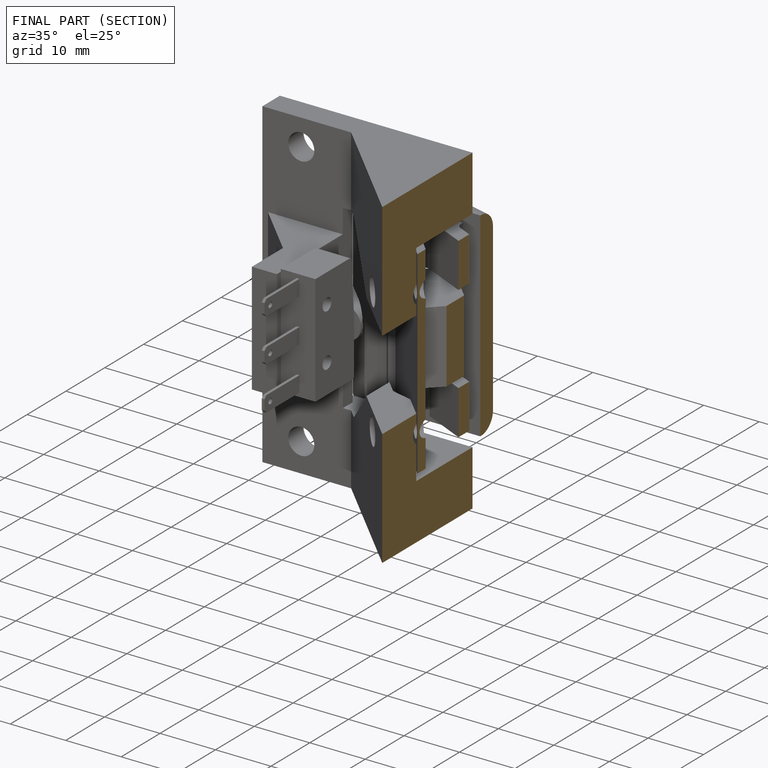
[diagram: finished part — half-section view (interior)]
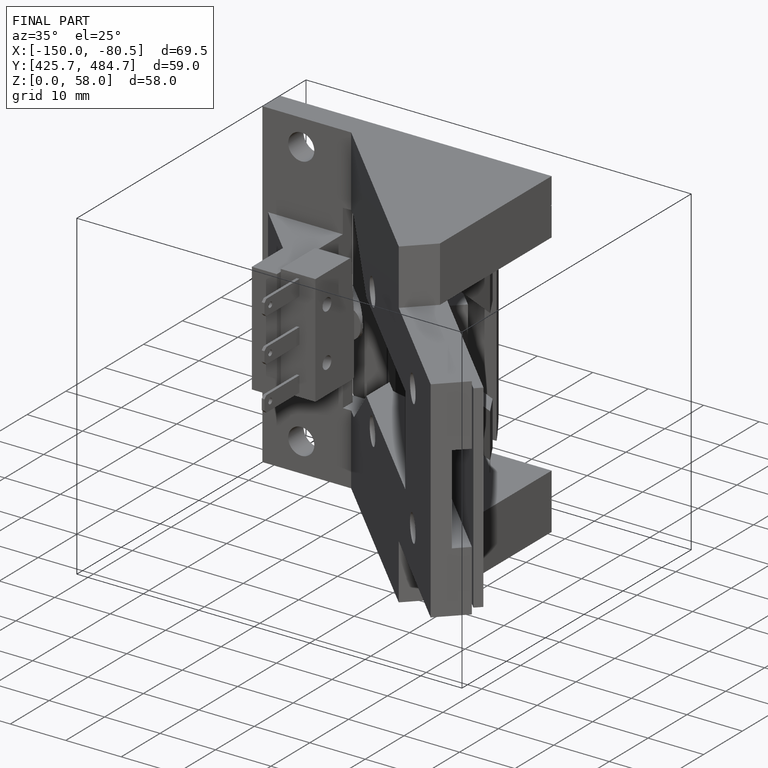
[diagram: finished part — iso view with bounding-box wireframe]
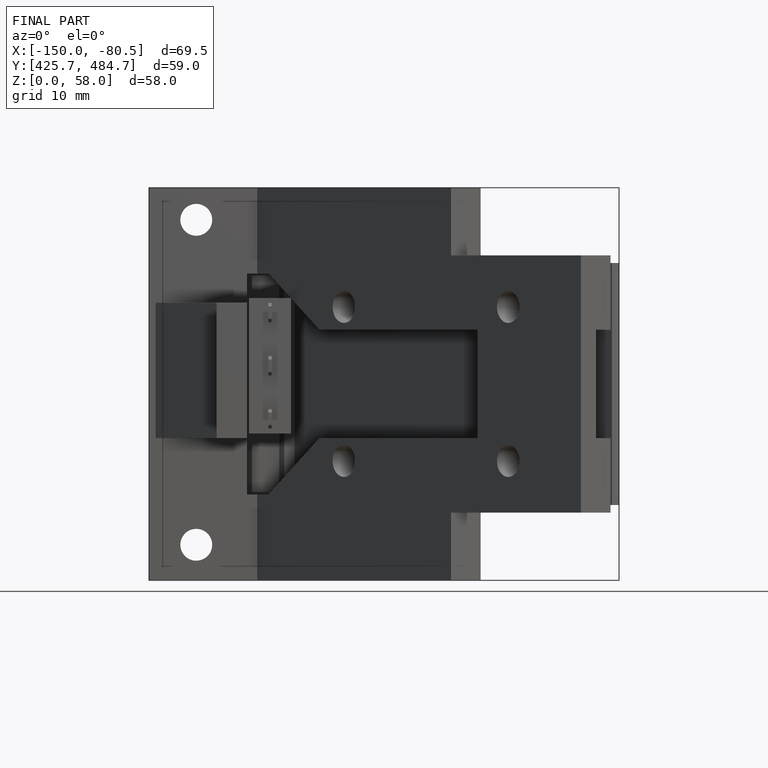
[diagram: finished part — front view with bounding-box wireframe]
